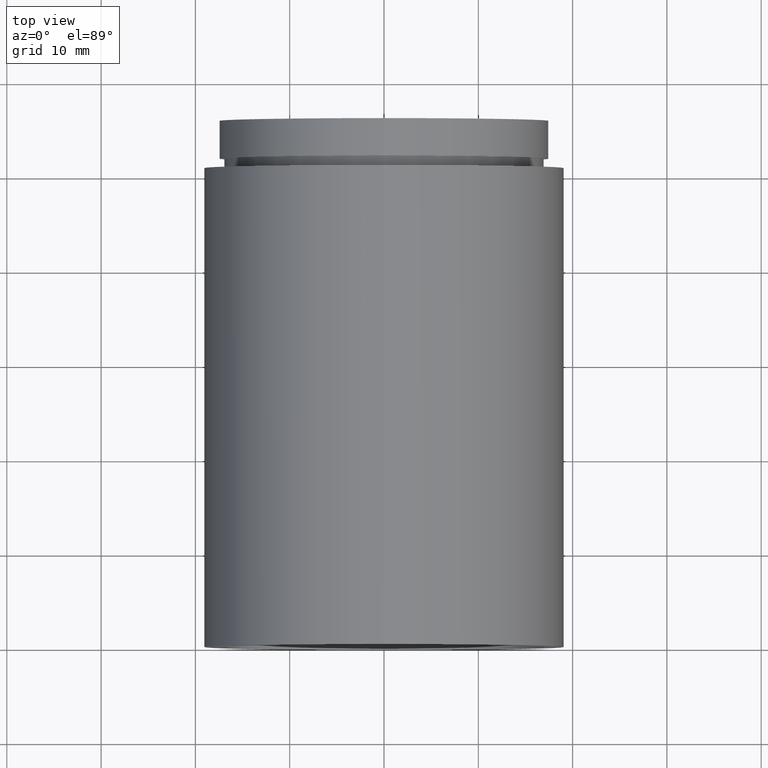
[diagram: clean part render]
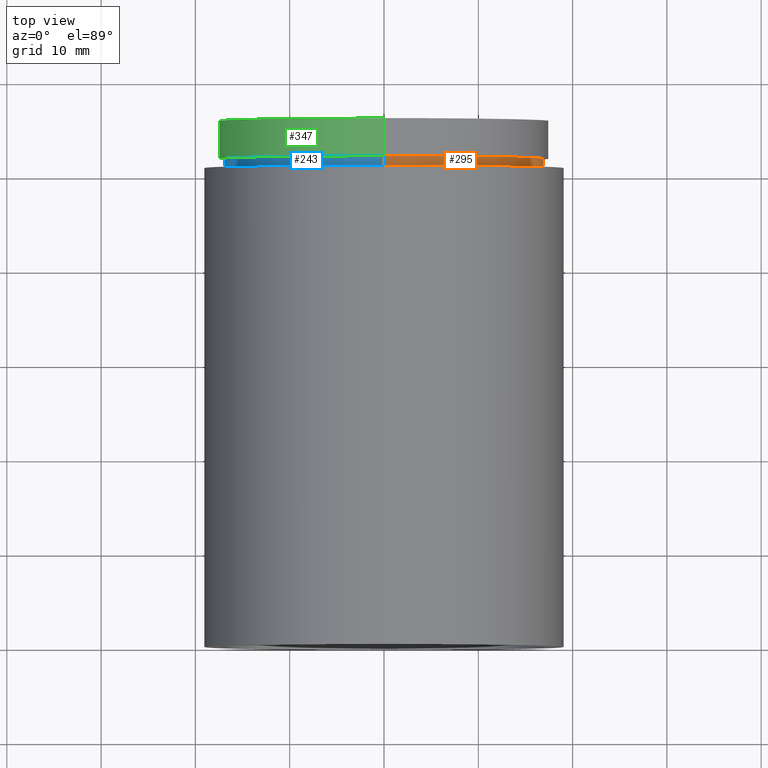
[diagram: same view with three faces highlighted in distinct colors, each labeled with its STEP entity id]
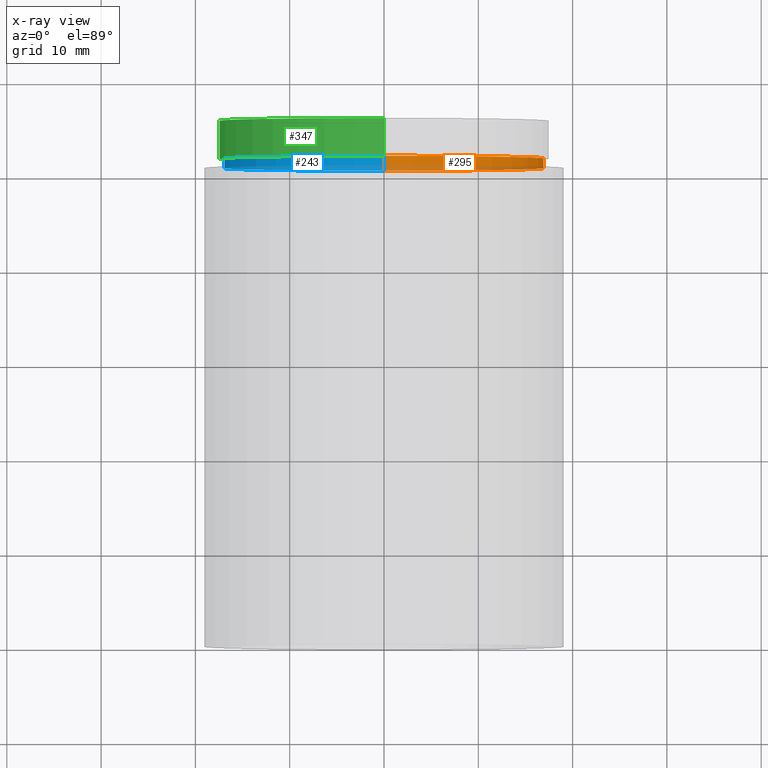
[diagram: x-ray of the same camera — body ghosted, the three highlighted faces saturated]
A machine part, top view with three faces highlighted in distinct colors.
The next image is the same camera in x-ray (body ghosted, the three faces saturated) — at least one of them is partly hidden behind the body in this view.
Their STEP definitions:

[orange] entity #295 — the highlighted cylindrical surface (partial cylindrical patch) has radius 17 mm, axis along (-0, 1, -0).
#19 = CARTESIAN_POINT ( 'NONE',  ( 0.0000000000000000000, 50.79999999999998300, 17.00000000000001400 ) ) ;
#27 = ORIENTED_EDGE ( 'NONE', *, *, #330, .F. ) ;
#55 = DIRECTION ( 'NONE',  ( -0.0000000000000000000, 1.000000000000000000, -0.0000000000000000000 ) ) ;
#92 = EDGE_CURVE ( 'NONE', #155, #435, #280, .T. ) ;
#104 = DIRECTION ( 'NONE',  ( 0.0000000000000000000, 0.0000000000000000000, 1.000000000000000000 ) ) ;
#119 = ORIENTED_EDGE ( 'NONE', *, *, #604, .T. ) ;
#139 = EDGE_CURVE ( 'NONE', #324, #510, #621, .T. ) ;
#146 = LINE ( 'NONE', #446, #329 ) ;
#155 = VERTEX_POINT ( 'NONE', #543 ) ;
#160 = ORIENTED_EDGE ( 'NONE', *, *, #139, .T. ) ;
#168 = AXIS2_PLACEMENT_3D ( 'NONE', #196, #352, #104 ) ;
#196 = CARTESIAN_POINT ( 'NONE',  ( 0.0000000000000000000, 51.79999999999998300, 0.0000000000000000000 ) ) ;
#200 = VECTOR ( 'NONE', #312, 1000.000000000000000 ) ;
#210 = CARTESIAN_POINT ( 'NONE',  ( 0.0000000000000000000, 161.3761669434274500, 17.00000000000001400 ) ) ;
#269 = LINE ( 'NONE', #210, #200 ) ;
#280 = CIRCLE ( 'NONE', #168, 17.00000000000001400 ) ;
#295 = ADVANCED_FACE ( 'NONE', ( #430 ), #619, .T. ) ;
#312 = DIRECTION ( 'NONE',  ( -0.0000000000000000000, 1.000000000000000000, -0.0000000000000000000 ) ) ;
#324 = VERTEX_POINT ( 'NONE', #19 ) ;
#329 = VECTOR ( 'NONE', #55, 1000.000000000000000 ) ;
#330 = EDGE_CURVE ( 'NONE', #324, #155, #269, .T. ) ;
#346 = CARTESIAN_POINT ( 'NONE',  ( 0.0000000000000000000, 50.79999999999998300, 0.0000000000000000000 ) ) ;
#352 = DIRECTION ( 'NONE',  ( -0.0000000000000000000, 1.000000000000000000, -0.0000000000000000000 ) ) ;
#358 = DIRECTION ( 'NONE',  ( 0.0000000000000000000, 0.0000000000000000000, 1.000000000000000000 ) ) ;
#362 = DIRECTION ( 'NONE',  ( -0.0000000000000000000, 1.000000000000000000, -0.0000000000000000000 ) ) ;
#398 = AXIS2_PLACEMENT_3D ( 'NONE', #346, #362, #358 ) ;
#430 = FACE_OUTER_BOUND ( 'NONE', #483, .T. ) ;
#435 = VERTEX_POINT ( 'NONE', #507 ) ;
#446 = CARTESIAN_POINT ( 'NONE',  ( 2.081899558550502300E-015, 161.3761669434274500, -17.00000000000001400 ) ) ;
#453 = DIRECTION ( 'NONE',  ( -0.0000000000000000000, 1.000000000000000000, -0.0000000000000000000 ) ) ;
#483 = EDGE_LOOP ( 'NONE', ( #160, #119, #539, #27 ) ) ;
#497 = DIRECTION ( 'NONE',  ( 0.0000000000000000000, 0.0000000000000000000, 1.000000000000000000 ) ) ;
#507 = CARTESIAN_POINT ( 'NONE',  ( 2.081899558550502300E-015, 51.79999999999998300, -17.00000000000001400 ) ) ;
#510 = VERTEX_POINT ( 'NONE', #569 ) ;
#539 = ORIENTED_EDGE ( 'NONE', *, *, #92, .F. ) ;
#543 = CARTESIAN_POINT ( 'NONE',  ( 0.0000000000000000000, 51.79999999999998300, 17.00000000000001400 ) ) ;
#552 = AXIS2_PLACEMENT_3D ( 'NONE', #556, #453, #497 ) ;
#556 = CARTESIAN_POINT ( 'NONE',  ( 0.0000000000000000000, 161.3761669434274500, 0.0000000000000000000 ) ) ;
#569 = CARTESIAN_POINT ( 'NONE',  ( 2.081899558550502300E-015, 50.79999999999998300, -17.00000000000001400 ) ) ;
#604 = EDGE_CURVE ( 'NONE', #510, #435, #146, .T. ) ;
#619 = CYLINDRICAL_SURFACE ( 'NONE', #552, 17.00000000000001400 ) ;
#621 = CIRCLE ( 'NONE', #398, 17.00000000000001400 ) ;

[blue] entity #243 — the highlighted cylindrical surface (partial cylindrical patch) has radius 17 mm, axis along (-0, 1, -0).
#19 = CARTESIAN_POINT ( 'NONE',  ( 0.0000000000000000000, 50.79999999999998300, 17.00000000000001400 ) ) ;
#37 = AXIS2_PLACEMENT_3D ( 'NONE', #605, #74, #375 ) ;
#55 = DIRECTION ( 'NONE',  ( -0.0000000000000000000, 1.000000000000000000, -0.0000000000000000000 ) ) ;
#58 = DIRECTION ( 'NONE',  ( -0.0000000000000000000, 1.000000000000000000, -0.0000000000000000000 ) ) ;
#70 = CARTESIAN_POINT ( 'NONE',  ( 0.0000000000000000000, 161.3761669434274500, 0.0000000000000000000 ) ) ;
#74 = DIRECTION ( 'NONE',  ( -0.0000000000000000000, 1.000000000000000000, -0.0000000000000000000 ) ) ;
#108 = CIRCLE ( 'NONE', #37, 17.00000000000001400 ) ;
#113 = DIRECTION ( 'NONE',  ( 0.0000000000000000000, 0.0000000000000000000, 1.000000000000000000 ) ) ;
#130 = FACE_OUTER_BOUND ( 'NONE', #546, .T. ) ;
#146 = LINE ( 'NONE', #446, #329 ) ;
#155 = VERTEX_POINT ( 'NONE', #543 ) ;
#200 = VECTOR ( 'NONE', #312, 1000.000000000000000 ) ;
#210 = CARTESIAN_POINT ( 'NONE',  ( 0.0000000000000000000, 161.3761669434274500, 17.00000000000001400 ) ) ;
#214 = CYLINDRICAL_SURFACE ( 'NONE', #291, 17.00000000000001400 ) ;
#225 = ORIENTED_EDGE ( 'NONE', *, *, #416, .T. ) ;
#243 = ADVANCED_FACE ( 'NONE', ( #130 ), #214, .T. ) ;
#269 = LINE ( 'NONE', #210, #200 ) ;
#291 = AXIS2_PLACEMENT_3D ( 'NONE', #70, #364, #405 ) ;
#301 = ORIENTED_EDGE ( 'NONE', *, *, #616, .F. ) ;
#312 = DIRECTION ( 'NONE',  ( -0.0000000000000000000, 1.000000000000000000, -0.0000000000000000000 ) ) ;
#324 = VERTEX_POINT ( 'NONE', #19 ) ;
#329 = VECTOR ( 'NONE', #55, 1000.000000000000000 ) ;
#330 = EDGE_CURVE ( 'NONE', #324, #155, #269, .T. ) ;
#364 = DIRECTION ( 'NONE',  ( -0.0000000000000000000, 1.000000000000000000, -0.0000000000000000000 ) ) ;
#375 = DIRECTION ( 'NONE',  ( 0.0000000000000000000, 0.0000000000000000000, 1.000000000000000000 ) ) ;
#397 = CARTESIAN_POINT ( 'NONE',  ( 0.0000000000000000000, 51.79999999999998300, 0.0000000000000000000 ) ) ;
#405 = DIRECTION ( 'NONE',  ( 0.0000000000000000000, 0.0000000000000000000, 1.000000000000000000 ) ) ;
#416 = EDGE_CURVE ( 'NONE', #510, #324, #108, .T. ) ;
#435 = VERTEX_POINT ( 'NONE', #507 ) ;
#446 = CARTESIAN_POINT ( 'NONE',  ( 2.081899558550502300E-015, 161.3761669434274500, -17.00000000000001400 ) ) ;
#472 = ORIENTED_EDGE ( 'NONE', *, *, #330, .T. ) ;
#507 = CARTESIAN_POINT ( 'NONE',  ( 2.081899558550502300E-015, 51.79999999999998300, -17.00000000000001400 ) ) ;
#510 = VERTEX_POINT ( 'NONE', #569 ) ;
#511 = CIRCLE ( 'NONE', #595, 17.00000000000001400 ) ;
#543 = CARTESIAN_POINT ( 'NONE',  ( 0.0000000000000000000, 51.79999999999998300, 17.00000000000001400 ) ) ;
#546 = EDGE_LOOP ( 'NONE', ( #620, #225, #472, #301 ) ) ;
#569 = CARTESIAN_POINT ( 'NONE',  ( 2.081899558550502300E-015, 50.79999999999998300, -17.00000000000001400 ) ) ;
#595 = AXIS2_PLACEMENT_3D ( 'NONE', #397, #58, #113 ) ;
#604 = EDGE_CURVE ( 'NONE', #510, #435, #146, .T. ) ;
#605 = CARTESIAN_POINT ( 'NONE',  ( 0.0000000000000000000, 50.79999999999998300, 0.0000000000000000000 ) ) ;
#616 = EDGE_CURVE ( 'NONE', #435, #155, #511, .T. ) ;
#620 = ORIENTED_EDGE ( 'NONE', *, *, #604, .F. ) ;

[green] entity #347 — the highlighted cylindrical surface (partial cylindrical patch) has radius 17.5 mm, axis along (-0, 1, -0).
#2 = CARTESIAN_POINT ( 'NONE',  ( 0.0000000000000000000, 51.79999999999998300, 17.50000000000002100 ) ) ;
#5 = EDGE_LOOP ( 'NONE', ( #218, #125, #75, #61 ) ) ;
#28 = DIRECTION ( 'NONE',  ( 0.0000000000000000000, 0.0000000000000000000, 1.000000000000000000 ) ) ;
#36 = EDGE_CURVE ( 'NONE', #473, #431, #343, .T. ) ;
#40 = VERTEX_POINT ( 'NONE', #2 ) ;
#51 = EDGE_CURVE ( 'NONE', #40, #554, #65, .T. ) ;
#61 = ORIENTED_EDGE ( 'NONE', *, *, #591, .F. ) ;
#62 = DIRECTION ( 'NONE',  ( -0.0000000000000000000, 1.000000000000000000, -0.0000000000000000000 ) ) ;
#65 = LINE ( 'NONE', #142, #410 ) ;
#75 = ORIENTED_EDGE ( 'NONE', *, *, #51, .T. ) ;
#125 = ORIENTED_EDGE ( 'NONE', *, *, #162, .T. ) ;
#142 = CARTESIAN_POINT ( 'NONE',  ( 0.0000000000000000000, 161.3761669434274500, 17.50000000000002100 ) ) ;
#143 = DIRECTION ( 'NONE',  ( 0.0000000000000000000, 0.0000000000000000000, 1.000000000000000000 ) ) ;
#144 = CARTESIAN_POINT ( 'NONE',  ( 2.143131898507870600E-015, 161.3761669434274500, -17.50000000000002100 ) ) ;
#162 = EDGE_CURVE ( 'NONE', #473, #40, #342, .T. ) ;
#172 = CARTESIAN_POINT ( 'NONE',  ( 2.143131898507870600E-015, 55.79999999999999000, -17.50000000000002100 ) ) ;
#195 = CARTESIAN_POINT ( 'NONE',  ( 0.0000000000000000000, 51.79999999999998300, 0.0000000000000000000 ) ) ;
#208 = VECTOR ( 'NONE', #524, 1000.000000000000000 ) ;
#218 = ORIENTED_EDGE ( 'NONE', *, *, #36, .F. ) ;
#235 = AXIS2_PLACEMENT_3D ( 'NONE', #391, #427, #143 ) ;
#241 = CARTESIAN_POINT ( 'NONE',  ( 0.0000000000000000000, 55.79999999999999000, 17.50000000000002100 ) ) ;
#261 = CARTESIAN_POINT ( 'NONE',  ( 0.0000000000000000000, 161.3761669434274500, 0.0000000000000000000 ) ) ;
#273 = CARTESIAN_POINT ( 'NONE',  ( 2.143131898507870600E-015, 51.79999999999998300, -17.50000000000002100 ) ) ;
#274 = AXIS2_PLACEMENT_3D ( 'NONE', #195, #307, #28 ) ;
#278 = FACE_OUTER_BOUND ( 'NONE', #5, .T. ) ;
#307 = DIRECTION ( 'NONE',  ( -0.0000000000000000000, 1.000000000000000000, -0.0000000000000000000 ) ) ;
#315 = DIRECTION ( 'NONE',  ( 0.0000000000000000000, 0.0000000000000000000, 1.000000000000000000 ) ) ;
#342 = CIRCLE ( 'NONE', #274, 17.50000000000002100 ) ;
#343 = LINE ( 'NONE', #144, #208 ) ;
#347 = ADVANCED_FACE ( 'NONE', ( #278 ), #501, .T. ) ;
#391 = CARTESIAN_POINT ( 'NONE',  ( 0.0000000000000000000, 55.79999999999999000, 0.0000000000000000000 ) ) ;
#410 = VECTOR ( 'NONE', #529, 1000.000000000000000 ) ;
#427 = DIRECTION ( 'NONE',  ( -0.0000000000000000000, 1.000000000000000000, -0.0000000000000000000 ) ) ;
#431 = VERTEX_POINT ( 'NONE', #172 ) ;
#473 = VERTEX_POINT ( 'NONE', #273 ) ;
#501 = CYLINDRICAL_SURFACE ( 'NONE', #506, 17.50000000000002100 ) ;
#506 = AXIS2_PLACEMENT_3D ( 'NONE', #261, #62, #315 ) ;
#524 = DIRECTION ( 'NONE',  ( -0.0000000000000000000, 1.000000000000000000, -0.0000000000000000000 ) ) ;
#529 = DIRECTION ( 'NONE',  ( -0.0000000000000000000, 1.000000000000000000, -0.0000000000000000000 ) ) ;
#554 = VERTEX_POINT ( 'NONE', #241 ) ;
#591 = EDGE_CURVE ( 'NONE', #431, #554, #609, .T. ) ;
#609 = CIRCLE ( 'NONE', #235, 17.50000000000002100 ) ;